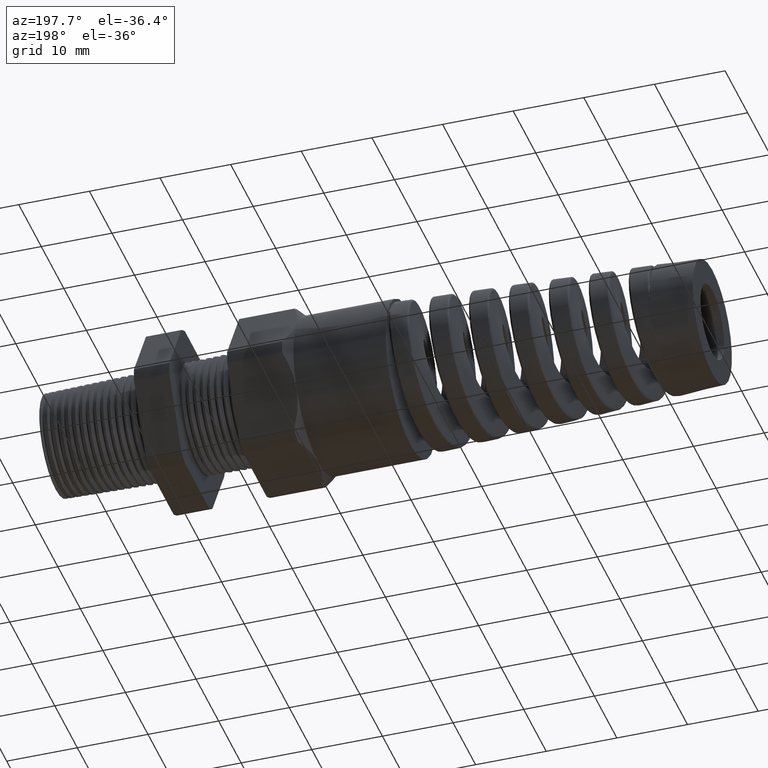
[diagram: clean part render]
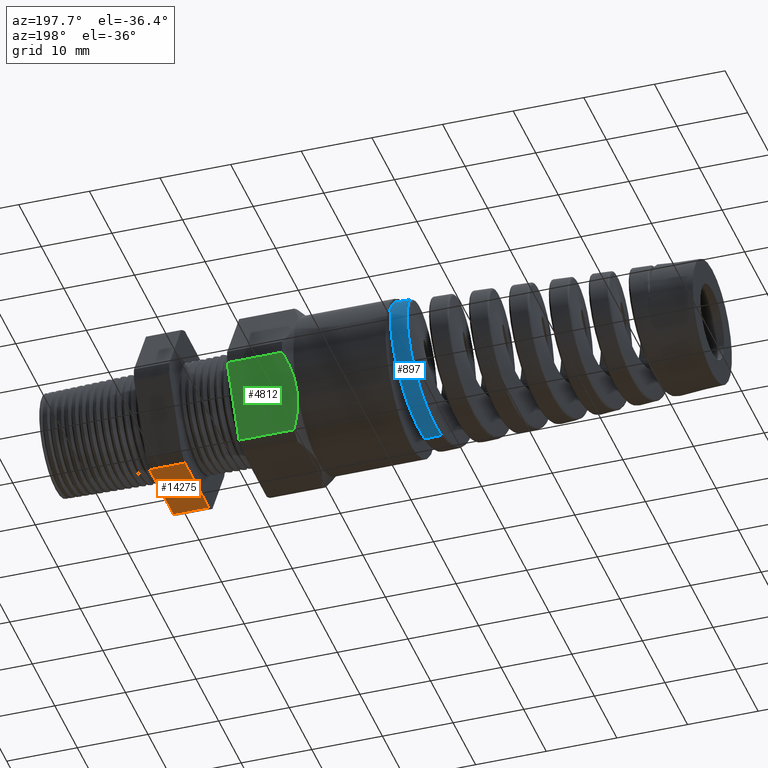
[diagram: same view with three faces highlighted in distinct colors, each labeled with its STEP entity id]
A machine part, auxiliary view with three faces highlighted in distinct colors.
Their STEP definitions:

[orange] entity #14275 — the highlighted planar face has unit normal (0, 0, -1).
#9445 = DIRECTION ( 'NONE',  ( -1.000000000000000000, 0.0000000000000000000, 0.0000000000000000000 ) ) ;
#9446 = VECTOR ( 'NONE', #9445, 39.37007874015748100 ) ;
#9447 = CARTESIAN_POINT ( 'NONE',  ( 0.2800000000000000300, 0.2095688967857588500, -0.4350000000000000000 ) ) ;
#9448 = LINE ( 'NONE', #9447, #9446 ) ;
#9454 = CARTESIAN_POINT ( 'NONE',  ( -0.5068503937007874400, -0.2095688967857587700, -0.4350000000000000500 ) ) ;
#9522 = DIRECTION ( 'NONE',  ( -1.000000000000000000, 0.0000000000000000000, 0.0000000000000000000 ) ) ;
#9523 = DIRECTION ( 'NONE',  ( 0.0000000000000000000, 0.0000000000000000000, -1.000000000000000000 ) ) ;
#9524 = CARTESIAN_POINT ( 'NONE',  ( 0.2800000000000000300, 0.2095688967857587700, -0.4350000000000000500 ) ) ;
#9525 = AXIS2_PLACEMENT_3D ( 'NONE', #9524, #9523, #9522 ) ;
#9530 = PLANE ( 'NONE',  #9525 ) ;
#9533 = FACE_OUTER_BOUND ( 'NONE', #14242, .T. ) ;
#9535 = DIRECTION ( 'NONE',  ( -1.000000000000000000, 0.0000000000000000000, 0.0000000000000000000 ) ) ;
#9536 = VECTOR ( 'NONE', #9535, 39.37007874015748100 ) ;
#9537 = CARTESIAN_POINT ( 'NONE',  ( 0.2800000000000000300, -0.2095688967857587700, -0.4350000000000000500 ) ) ;
#9539 = LINE ( 'NONE', #9537, #9536 ) ;
#9543 = DIRECTION ( 'NONE',  ( 0.0000000000000000000, -1.000000000000000000, 0.0000000000000000000 ) ) ;
#9545 = VECTOR ( 'NONE', #9543, 39.37007874015748100 ) ;
#9548 = CARTESIAN_POINT ( 'NONE',  ( -0.5068503937007874400, 0.8700000000000000000, -0.4350000000000000500 ) ) ;
#9549 = LINE ( 'NONE', #9548, #9545 ) ;
#9555 = CARTESIAN_POINT ( 'NONE',  ( -0.5068503937007874400, 0.2095688967857588500, -0.4350000000000000000 ) ) ;
#9646 = CARTESIAN_POINT ( 'NONE',  ( -0.3100000000000000000, -0.2095688967857587700, -0.4350000000000000500 ) ) ;
#9651 = CARTESIAN_POINT ( 'NONE',  ( -0.3100000000000000000, 0.2095688967857588500, -0.4350000000000000000 ) ) ;
#9835 = DIRECTION ( 'NONE',  ( 0.0000000000000000000, 1.000000000000000000, 0.0000000000000000000 ) ) ;
#9836 = VECTOR ( 'NONE', #9835, 39.37007874015748100 ) ;
#9838 = CARTESIAN_POINT ( 'NONE',  ( -0.3100000000000000000, 0.8700000000000000000, -0.4350000000000000500 ) ) ;
#9850 = LINE ( 'NONE', #9838, #9836 ) ;
#14242 = EDGE_LOOP ( 'NONE', ( #14273, #14274, #14272, #14253 ) ) ;
#14253 = ORIENTED_EDGE ( 'NONE', *, *, #14270, .F. ) ;
#14260 = VERTEX_POINT ( 'NONE', #9454 ) ;
#14265 = EDGE_CURVE ( 'NONE', #14326, #14269, #9448, .T. ) ;
#14269 = VERTEX_POINT ( 'NONE', #9555 ) ;
#14270 = EDGE_CURVE ( 'NONE', #14269, #14260, #9549, .T. ) ;
#14271 = EDGE_CURVE ( 'NONE', #14330, #14260, #9539, .T. ) ;
#14272 = ORIENTED_EDGE ( 'NONE', *, *, #14271, .T. ) ;
#14273 = ORIENTED_EDGE ( 'NONE', *, *, #14265, .F. ) ;
#14274 = ORIENTED_EDGE ( 'NONE', *, *, #14357, .F. ) ;
#14275 = ADVANCED_FACE ( 'NONE', ( #9533 ), #9530, .T. ) ;
#14326 = VERTEX_POINT ( 'NONE', #9651 ) ;
#14330 = VERTEX_POINT ( 'NONE', #9646 ) ;
#14357 = EDGE_CURVE ( 'NONE', #14330, #14326, #9850, .T. ) ;

[blue] entity #897 — the highlighted conical surface has half-angle 2.5 deg.
#816 = VERTEX_POINT ( 'NONE', #9504 ) ;
#817 = VERTEX_POINT ( 'NONE', #9496 ) ;
#818 = ORIENTED_EDGE ( 'NONE', *, *, #819, .T. ) ;
#819 = EDGE_CURVE ( 'NONE', #817, #820, #9491, .T. ) ;
#820 = VERTEX_POINT ( 'NONE', #9482 ) ;
#821 = ORIENTED_EDGE ( 'NONE', *, *, #822, .F. ) ;
#822 = EDGE_CURVE ( 'NONE', #823, #820, #9474, .T. ) ;
#823 = VERTEX_POINT ( 'NONE', #9469 ) ;
#879 = ORIENTED_EDGE ( 'NONE', *, *, #880, .F. ) ;
#880 = EDGE_CURVE ( 'NONE', #881, #823, #12725, .T. ) ;
#881 = VERTEX_POINT ( 'NONE', #12721 ) ;
#882 = ORIENTED_EDGE ( 'NONE', *, *, #883, .T. ) ;
#883 = EDGE_CURVE ( 'NONE', #881, #884, #12719, .T. ) ;
#884 = VERTEX_POINT ( 'NONE', #12720 ) ;
#885 = ORIENTED_EDGE ( 'NONE', *, *, #886, .F. ) ;
#886 = EDGE_CURVE ( 'NONE', #816, #884, #12718, .T. ) ;
#897 = ADVANCED_FACE ( 'NONE', ( #12735 ), #12734, .T. ) ;
#898 = EDGE_LOOP ( 'NONE', ( #899, #818, #821, #879, #882, #885 ) ) ;
#899 = ORIENTED_EDGE ( 'NONE', *, *, #900, .T. ) ;
#900 = EDGE_CURVE ( 'NONE', #816, #817, #12782, .T. ) ;
#9469 = CARTESIAN_POINT ( 'NONE',  ( -1.697947509874504700, 0.3794881232733283700, 0.1733064189351122800 ) ) ;
#9470 = DIRECTION ( 'NONE',  ( 0.0000000000000000000, -1.776356839400250500E-015, 1.000000000000000000 ) ) ;
#9471 = DIRECTION ( 'NONE',  ( 1.000000000000000000, 0.0000000000000000000, 0.0000000000000000000 ) ) ;
#9472 = CARTESIAN_POINT ( 'NONE',  ( -1.697947509874504500, 0.0000000000000000000, 0.0000000000000000000 ) ) ;
#9473 = AXIS2_PLACEMENT_3D ( 'NONE', #9472, #9471, #9470 ) ;
#9474 = CIRCLE ( 'NONE', #9473, 0.4171886270616993500 ) ;
#9482 = CARTESIAN_POINT ( 'NONE',  ( -1.697947509874504500, 5.109087167717889600E-017, 0.4171886270616993500 ) ) ;
#9486 = DIRECTION ( 'NONE',  ( 0.9990482215818576900, 5.341834311772761000E-018, 0.04361938736533630500 ) ) ;
#9488 = VECTOR ( 'NONE', #9486, 39.37007874015748100 ) ;
#9490 = CARTESIAN_POINT ( 'NONE',  ( -1.289999999999999600, 5.327213576290984500E-017, 0.4349999999999998900 ) ) ;
#9491 = LINE ( 'NONE', #9490, #9488 ) ;
#9496 = CARTESIAN_POINT ( 'NONE',  ( -1.759818526434775400, -4.413664036148914700E-016, 0.4144872801399697200 ) ) ;
#9504 = CARTESIAN_POINT ( 'NONE',  ( -1.869987152945541600, -3.123943079857578700E-014, -0.4096772140275739500 ) ) ;
#12695 = CARTESIAN_POINT ( 'NONE',  ( -1.749105219087355500, 0.3077843265509296300, -0.2788465494111039800 ) ) ;
#12696 = CARTESIAN_POINT ( 'NONE',  ( -1.746198598627165500, 0.3300109971703515900, -0.2523582137224551500 ) ) ;
#12697 = CARTESIAN_POINT ( 'NONE',  ( -1.744754043085099600, 0.3402296694279314200, -0.2385060421989063100 ) ) ;
#12698 = CARTESIAN_POINT ( 'NONE',  ( -1.741857825854413300, 0.3589035858062654100, -0.2096057816249846400 ) ) ;
#12699 = CARTESIAN_POINT ( 'NONE',  ( -1.740406224564121600, 0.3673589461787786800, -0.1945577652890330400 ) ) ;
#12700 = CARTESIAN_POINT ( 'NONE',  ( -1.737473779202460800, 0.3824496773234487600, -0.1632296954733170300 ) ) ;
#12701 = CARTESIAN_POINT ( 'NONE',  ( -1.736005218053345600, 0.3890092206198398900, -0.1470768213572722400 ) ) ;
#12702 = CARTESIAN_POINT ( 'NONE',  ( -1.733098478209519100, 0.3999739132701515300, -0.1143945794678229000 ) ) ;
#12703 = CARTESIAN_POINT ( 'NONE',  ( -1.731653513978001600, 0.4044213241097587800, -0.09777959250355787400 ) ) ;
#12704 = CARTESIAN_POINT ( 'NONE',  ( -1.728758839455180900, 0.4112492772151660800, -0.06400456391847109100 ) ) ;
#12705 = CARTESIAN_POINT ( 'NONE',  ( -1.727302473472208000, 0.4136348446785426700, -0.04677373323841174700 ) ) ;
#12706 = CARTESIAN_POINT ( 'NONE',  ( -1.722923125296478700, 0.4175182178197094900, 0.005299779680468981600 ) ) ;
#12709 = DIRECTION ( 'NONE',  ( 0.9990482215818576900, 0.0000000000000000000, -0.04361938736533630500 ) ) ;
#12710 = VECTOR ( 'NONE', #12709, 39.37007874015748100 ) ;
#12711 = CARTESIAN_POINT ( 'NONE',  ( -1.289999999999999600, 0.0000000000000000000, -0.4349999999999998900 ) ) ;
#12712 = CARTESIAN_POINT ( 'NONE',  ( -1.720059195504385100, 0.4157663971285094400, 0.03967146625719095200 ) ) ;
#12713 = CARTESIAN_POINT ( 'NONE',  ( -1.715702347076071500, 0.4067797165749028600, 0.09071301296083254800 ) ) ;
#12714 = CARTESIAN_POINT ( 'NONE',  ( -1.714232638663220300, 0.4026800839986720600, 0.1077256585311541600 ) ) ;
#12715 = CARTESIAN_POINT ( 'NONE',  ( -1.711306039998091700, 0.3924186553999360900, 0.1409613995903427600 ) ) ;
#12716 = CARTESIAN_POINT ( 'NONE',  ( -1.709846342252209700, 0.3862631574075534600, 0.1572205726125605300 ) ) ;
#12717 = CARTESIAN_POINT ( 'NONE',  ( -1.708382659566020300, 0.3790736872271837600, 0.1731171523345783300 ) ) ;
#12718 = LINE ( 'NONE', #12711, #12710 ) ;
#12719 = B_SPLINE_CURVE_WITH_KNOTS ( 'NONE', 3,
 ( #12717, #12716, #12715, #12714, #12713, #12712, #12706, #12705, #12704, #12703, #12702, #12701, #12700, #12699, #12698, #12697, #12696, #12695, #12764, #12763, #12762, #12761, #12760, #12759, #12758, #12757, #12756, #12755, #12754, #12753 ),
 .UNSPECIFIED., .F., .F.,
 ( 4, 2, 2, 2, 2, 2, 2, 2, 2, 2, 2, 2, 2, 2, 4 ),
 ( 0.0000000000000000000, 0.001329015504108315700, 0.002658031008216631300, 0.005316062016433261700, 0.006645077520541577800, 0.007974093024649894800, 0.009303108528758210000, 0.01063212403286652500, 0.01196113953697484200, 0.01329015504108315900, 0.01594818604929979000, 0.01727720155340811000, 0.01860621705751642700, 0.01993523256162474400, 0.02126424806573306100 ),
 .UNSPECIFIED. ) ;
#12720 = CARTESIAN_POINT ( 'NONE',  ( -1.778276626023046300, 1.049936777947114100E-012, -0.4136813821076466000 ) ) ;
#12721 = CARTESIAN_POINT ( 'NONE',  ( -1.708382659566020300, 0.3790736872271837600, 0.1731171523345783300 ) ) ;
#12722 = DIRECTION ( 'NONE',  ( 0.9990482215818576900, 0.03967759036527075000, 0.01812014836950940800 ) ) ;
#12723 = VECTOR ( 'NONE', #12722, 39.37007874015748100 ) ;
#12724 = CARTESIAN_POINT ( 'NONE',  ( -11.25313801356749700, -8.866020857870795700E-019, 1.941387766782773200E-018 ) ) ;
#12725 = LINE ( 'NONE', #12724, #12723 ) ;
#12734 = CONICAL_SURFACE ( 'NONE', #12787, 0.4349999999999998900, 0.04363323129985854200 ) ;
#12735 = FACE_OUTER_BOUND ( 'NONE', #898, .T. ) ;
#12753 = CARTESIAN_POINT ( 'NONE',  ( -1.778276626023046300, 1.049936777947114100E-012, -0.4136813821076466000 ) ) ;
#12754 = CARTESIAN_POINT ( 'NONE',  ( -1.776822342904421200, 0.01721106945705508700, -0.4137448774798180900 ) ) ;
#12755 = CARTESIAN_POINT ( 'NONE',  ( -1.775367572974109000, 0.03446490306440957300, -0.4127386796272036800 ) ) ;
#12756 = CARTESIAN_POINT ( 'NONE',  ( -1.772430032450400100, 0.06905899246847811700, -0.4085071184895989700 ) ) ;
#12757 = CARTESIAN_POINT ( 'NONE',  ( -1.770971416669324700, 0.08611160194830154400, -0.4053118216148420800 ) ) ;
#12758 = CARTESIAN_POINT ( 'NONE',  ( -1.768068041300423300, 0.1195088067156545000, -0.3968822277226902700 ) ) ;
#12759 = CARTESIAN_POINT ( 'NONE',  ( -1.766619997668136000, 0.1358928358664816300, -0.3916429410271444800 ) ) ;
#12760 = CARTESIAN_POINT ( 'NONE',  ( -1.763707434765078100, 0.1680274909740064600, -0.3791083958047598000 ) ) ;
#12761 = CARTESIAN_POINT ( 'NONE',  ( -1.762233248273574500, 0.1838780121430427800, -0.3717563020103948900 ) ) ;
#12762 = CARTESIAN_POINT ( 'NONE',  ( -1.757827622265492500, 0.2296584264894643600, -0.3468933411470998500 ) ) ;
#12763 = CARTESIAN_POINT ( 'NONE',  ( -1.754943681735108100, 0.2576032015492146800, -0.3268251046421922800 ) ) ;
#12764 = CARTESIAN_POINT ( 'NONE',  ( -1.750576158884134200, 0.2956919500469616400, -0.2915478049266984600 ) ) ;
#12765 = CARTESIAN_POINT ( 'NONE',  ( -1.836574599157338800, 0.3353700915211437800, -0.2382013937207167200 ) ) ;
#12766 = CARTESIAN_POINT ( 'NONE',  ( -1.837719927918936000, 0.3273753047961898100, -0.2489953573931748800 ) ) ;
#12767 = CARTESIAN_POINT ( 'NONE',  ( -1.840017415274145100, 0.3102897201031448700, -0.2698353301421495500 ) ) ;
#12768 = CARTESIAN_POINT ( 'NONE',  ( -1.841175209224826600, 0.3011555264941155900, -0.2799238433735226100 ) ) ;
#12769 = CARTESIAN_POINT ( 'NONE',  ( -1.844643698052410800, 0.2723509675360869500, -0.3087157347620752000 ) ) ;
#12770 = CARTESIAN_POINT ( 'NONE',  ( -1.846921604849405700, 0.2515484429200812700, -0.3257407682224600100 ) ) ;
#12771 = CARTESIAN_POINT ( 'NONE',  ( -1.850362170562167300, 0.2180216913266075900, -0.3481167602432190300 ) ) ;
#12772 = CARTESIAN_POINT ( 'NONE',  ( -1.851512826080381000, 0.2064561426543130300, -0.3550447075335407300 ) ) ;
#12773 = CARTESIAN_POINT ( 'NONE',  ( -1.853833237338517800, 0.1825235589414383200, -0.3678081980434257400 ) ) ;
#12774 = CARTESIAN_POINT ( 'NONE',  ( -1.854999448425058700, 0.1701899299555240900, -0.3736163376987128900 ) ) ;
#12775 = CARTESIAN_POINT ( 'NONE',  ( -1.858465252674846200, 0.1327937817702409500, -0.3890253553427059900 ) ) ;
#12776 = CARTESIAN_POINT ( 'NONE',  ( -1.860754780517113400, 0.1070899885657351800, -0.3967690349089999000 ) ) ;
#12777 = CARTESIAN_POINT ( 'NONE',  ( -1.864212878419543300, 0.06737618642902928900, -0.4045794345052226000 ) ) ;
#12778 = CARTESIAN_POINT ( 'NONE',  ( -1.865376961625062200, 0.05386736216256095300, -0.4065492076221711200 ) ) ;
#12779 = CARTESIAN_POINT ( 'NONE',  ( -1.867690451625402300, 0.02689189993856584300, -0.4091185450251746400 ) ) ;
#12780 = CARTESIAN_POINT ( 'NONE',  ( -1.868839432925033500, 0.01343207603015052900, -0.4097273245658653600 ) ) ;
#12781 = CARTESIAN_POINT ( 'NONE',  ( -1.869987152945541600, -3.123943079857578700E-014, -0.4096772140275739500 ) ) ;
#12782 = B_SPLINE_CURVE_WITH_KNOTS ( 'NONE', 3,
 ( #12781, #12780, #12779, #12778, #12777, #12776, #12775, #12774, #12773, #12772, #12771, #12770, #12769, #12768, #12767, #12766, #12765, #12845, #12844, #12843, #12842, #12841, #12840, #12839, #12838, #12837, #12836, #12835, #12834, #12833, #12832, #12831, #12830, #12829, #12828, #12827, #12826, #12825, #12824, #12823, #12822, #12821, #12820, #12819, #12818, #12817, #12816, #12815 ),
 .UNSPECIFIED., .F., .F.,
 ( 4, 2, 2, 2, 2, 2, 2, 2, 2, 2, 2, 2, 2, 2, 2, 2, 2, 2, 2, 2, 2, 2, 2, 4 ),
 ( 0.3560480053400000800, 0.3570866350650043800, 0.3581252647900086100, 0.3602025242400172000, 0.3612411539650214300, 0.3622797836900257300, 0.3643570431400343100, 0.3653956728650386000, 0.3664343025900428400, 0.3674729323150471300, 0.3685115620400514200, 0.3705888214900599500, 0.3726660809400685300, 0.3747433403900770600, 0.3757819701150813500, 0.3768205998400856500, 0.3788978592900942300, 0.3809751187401028100, 0.3820137484651070500, 0.3830523781901113400, 0.3851296376401199300, 0.3861682673651241600, 0.3872068970901284500, 0.3892841565401370400 ),
 .UNSPECIFIED. ) ;
#12784 = DIRECTION ( 'NONE',  ( 0.0000000000000000000, 0.0000000000000000000, -1.000000000000000000 ) ) ;
#12785 = DIRECTION ( 'NONE',  ( 1.000000000000000000, 0.0000000000000000000, 0.0000000000000000000 ) ) ;
#12786 = CARTESIAN_POINT ( 'NONE',  ( -1.289999999999999600, 0.0000000000000000000, 0.0000000000000000000 ) ) ;
#12787 = AXIS2_PLACEMENT_3D ( 'NONE', #12786, #12785, #12784 ) ;
#12815 = CARTESIAN_POINT ( 'NONE',  ( -1.759818526434775400, -4.413664036148914700E-016, 0.4144872801399697200 ) ) ;
#12816 = CARTESIAN_POINT ( 'NONE',  ( -1.762114852244692600, 0.02709255505655012000, 0.4143870203898841200 ) ) ;
#12817 = CARTESIAN_POINT ( 'NONE',  ( -1.764386336985494400, 0.05381673444277348900, 0.4116566522546143400 ) ) ;
#12818 = CARTESIAN_POINT ( 'NONE',  ( -1.767804209272199700, 0.09335851967198916000, 0.4037025351181351400 ) ) ;
#12819 = CARTESIAN_POINT ( 'NONE',  ( -1.768944762968068100, 0.1064477767329766600, 0.4004035633135491500 ) ) ;
#12820 = CARTESIAN_POINT ( 'NONE',  ( -1.771242565967483500, 0.1324365111693308100, 0.3924686445601590100 ) ) ;
#12821 = CARTESIAN_POINT ( 'NONE',  ( -1.772389467515735900, 0.1452189024075994600, 0.3878632414478079800 ) ) ;
#12822 = CARTESIAN_POINT ( 'NONE',  ( -1.775805216737160100, 0.1825222522689072300, 0.3723342986995234500 ) ) ;
#12823 = CARTESIAN_POINT ( 'NONE',  ( -1.778065396128090300, 0.2061895441117343500, 0.3596599604627425100 ) ) ;
#12824 = CARTESIAN_POINT ( 'NONE',  ( -1.781501381116243700, 0.2398668407961102600, 0.3371380872896227500 ) ) ;
#12825 = CARTESIAN_POINT ( 'NONE',  ( -1.782660374738460000, 0.2508399215683423900, 0.3289930512329555800 ) ) ;
#12826 = CARTESIAN_POINT ( 'NONE',  ( -1.784960663624737700, 0.2717508325124014000, 0.3118100916086825600 ) ) ;
#12827 = CARTESIAN_POINT ( 'NONE',  ( -1.786104655516522300, 0.2817197048742711700, 0.3027605385936112400 ) ) ;
#12828 = CARTESIAN_POINT ( 'NONE',  ( -1.789531388553288200, 0.3101989291423670700, 0.2742696207876061900 ) ) ;
#12829 = CARTESIAN_POINT ( 'NONE',  ( -1.791804842473727600, 0.3272960411029517400, 0.2534988260871783900 ) ) ;
#12830 = CARTESIAN_POINT ( 'NONE',  ( -1.796417506856193600, 0.3575528933335299100, 0.2082640991321848800 ) ) ;
#12831 = CARTESIAN_POINT ( 'NONE',  ( -1.798689471854974000, 0.3702462593188491900, 0.1844840420711519600 ) ) ;
#12832 = CARTESIAN_POINT ( 'NONE',  ( -1.802107602664885000, 0.3856930120018775600, 0.1472876479982669600 ) ) ;
#12833 = CARTESIAN_POINT ( 'NONE',  ( -1.803249317170855900, 0.3902439334046629600, 0.1346247090286903600 ) ) ;
#12834 = CARTESIAN_POINT ( 'NONE',  ( -1.805548990000180000, 0.3981237645619473700, 0.1087601253865206300 ) ) ;
#12835 = CARTESIAN_POINT ( 'NONE',  ( -1.806711716707019500, 0.4014581404030877500, 0.09550244170180899300 ) ) ;
#12836 = CARTESIAN_POINT ( 'NONE',  ( -1.810167615464115300, 0.4093976183237753000, 0.05573693659159324000 ) ) ;
#12837 = CARTESIAN_POINT ( 'NONE',  ( -1.812449015748325700, 0.4120471503902004600, 0.02901798415312037800 ) ) ;
#12838 = CARTESIAN_POINT ( 'NONE',  ( -1.817029799822942500, 0.4121209588199185600, -0.02482692053036748100 ) ) ;
#12839 = CARTESIAN_POINT ( 'NONE',  ( -1.819349106600529400, 0.4094583509440427000, -0.05214674160645232200 ) ) ;
#12840 = CARTESIAN_POINT ( 'NONE',  ( -1.823920865184595100, 0.3990020527966161000, -0.1049208929733251200 ) ) ;
#12841 = CARTESIAN_POINT ( 'NONE',  ( -1.826194987246362800, 0.3912454807942473100, -0.1306359172121986400 ) ) ;
#12842 = CARTESIAN_POINT ( 'NONE',  ( -1.829659307754784500, 0.3757419569695424300, -0.1681738741978594000 ) ) ;
#12843 = CARTESIAN_POINT ( 'NONE',  ( -1.830824657177118500, 0.3699073547365695500, -0.1805273461960573400 ) ) ;
#12844 = CARTESIAN_POINT ( 'NONE',  ( -1.833131980831749200, 0.3571873091934370000, -0.2043426629538824000 ) ) ;
#12845 = CARTESIAN_POINT ( 'NONE',  ( -1.834280327717205900, 0.3502760821046648800, -0.2158750695085457900 ) ) ;

[green] entity #4812 — the highlighted planar face has unit normal (0, 0.866, -0.5).
#4477 = VERTEX_POINT ( 'NONE', #8537 ) ;
#4812 = ADVANCED_FACE ( 'NONE', ( #9054 ), #9052, .T. ) ;
#4815 = EDGE_LOOP ( 'NONE', ( #4955, #4954, #4946, #4947, #4949 ) ) ;
#4910 = VERTEX_POINT ( 'NONE', #9111 ) ;
#4912 = EDGE_CURVE ( 'NONE', #4910, #4918, #9110, .T. ) ;
#4918 = VERTEX_POINT ( 'NONE', #9105 ) ;
#4946 = ORIENTED_EDGE ( 'NONE', *, *, #4950, .T. ) ;
#4947 = ORIENTED_EDGE ( 'NONE', *, *, #14432, .F. ) ;
#4948 = EDGE_CURVE ( 'NONE', #4910, #14429, #9125, .T. ) ;
#4949 = ORIENTED_EDGE ( 'NONE', *, *, #4948, .F. ) ;
#4950 = EDGE_CURVE ( 'NONE', #4477, #14430, #9121, .T. ) ;
#4953 = EDGE_CURVE ( 'NONE', #4918, #4477, #9160, .T. ) ;
#4954 = ORIENTED_EDGE ( 'NONE', *, *, #4953, .T. ) ;
#4955 = ORIENTED_EDGE ( 'NONE', *, *, #4912, .T. ) ;
#8537 = CARTESIAN_POINT ( 'NONE',  ( -1.183700787401574600, 0.3767210506462309600, -0.2175000000000000300 ) ) ;
#9048 = DIRECTION ( 'NONE',  ( 0.0000000000000000000, 0.4999999999999998300, 0.8660254037844386000 ) ) ;
#9049 = DIRECTION ( 'NONE',  ( 0.0000000000000000000, 0.8660254037844387100, -0.4999999999999998900 ) ) ;
#9050 = CARTESIAN_POINT ( 'NONE',  ( 0.2800000000000000300, 0.4815054990391102700, -0.03600801154045400000 ) ) ;
#9051 = AXIS2_PLACEMENT_3D ( 'NONE', #9050, #9049, #9048 ) ;
#9052 = PLANE ( 'NONE',  #9051 ) ;
#9054 = FACE_OUTER_BOUND ( 'NONE', #4815, .T. ) ;
#9105 = CARTESIAN_POINT ( 'NONE',  ( -1.135850787401574600, 0.2719366022533516400, -0.3989919884595459800 ) ) ;
#9107 = DIRECTION ( 'NONE',  ( -1.000000000000000000, 0.0000000000000000000, 0.0000000000000000000 ) ) ;
#9108 = VECTOR ( 'NONE', #9107, 39.37007874015748100 ) ;
#9109 = CARTESIAN_POINT ( 'NONE',  ( 0.2800000000000000300, 0.2719366022533517000, -0.3989919884595459800 ) ) ;
#9110 = LINE ( 'NONE', #9109, #9108 ) ;
#9111 = CARTESIAN_POINT ( 'NONE',  ( -0.8293700787401573300, 0.2719366022533517000, -0.3989919884595459800 ) ) ;
#9116 = CARTESIAN_POINT ( 'NONE',  ( -1.183700787401574600, 0.3767210506462309600, -0.2175000000000000300 ) ) ;
#9121 = B_SPLINE_CURVE_WITH_KNOTS ( 'NONE', 3,
 ( #9116, #9174, #9173, #9172, #9171, #9170 ),
 .UNSPECIFIED., .F., .F.,
 ( 4, 2, 4 ),
 ( 0.005463532759325820200, 0.008193301819514674900, 0.01092307087970353100 ),
 .UNSPECIFIED. ) ;
#9122 = DIRECTION ( 'NONE',  ( 0.0000000000000000000, 0.4999999999999998300, 0.8660254037844386000 ) ) ;
#9123 = VECTOR ( 'NONE', #9122, 39.37007874015748900 ) ;
#9124 = CARTESIAN_POINT ( 'NONE',  ( -0.8293700787401573300, 0.4554710506462308900, -0.08110099890395097700 ) ) ;
#9125 = LINE ( 'NONE', #9124, #9123 ) ;
#9151 = CARTESIAN_POINT ( 'NONE',  ( -1.183700787401574600, 0.3767210506462309600, -0.2175000000000000300 ) ) ;
#9152 = CARTESIAN_POINT ( 'NONE',  ( -1.183700787401574400, 0.3676495597967359700, -0.2332122830517214300 ) ) ;
#9153 = CARTESIAN_POINT ( 'NONE',  ( -1.182536090834003700, 0.3584812283341805000, -0.2490922989655000300 ) ) ;
#9154 = CARTESIAN_POINT ( 'NONE',  ( -1.178089260520927400, 0.3405629272155457100, -0.2801277068882933600 ) ) ;
#9155 = CARTESIAN_POINT ( 'NONE',  ( -1.174815962699240000, 0.3317346034573625000, -0.2954188121831342600 ) ) ;
#9156 = CARTESIAN_POINT ( 'NONE',  ( -1.162280890324094700, 0.3055879730118447000, -0.3407061045614985800 ) ) ;
#9157 = CARTESIAN_POINT ( 'NONE',  ( -1.150320593554597900, 0.2886059315482656400, -0.3701198631926586600 ) ) ;
#9158 = CARTESIAN_POINT ( 'NONE',  ( -1.135850787401574600, 0.2719366022533516400, -0.3989919884595459800 ) ) ;
#9160 = B_SPLINE_CURVE_WITH_KNOTS ( 'NONE', 3,
 ( #9158, #9157, #9156, #9155, #9154, #9153, #9152, #9151 ),
 .UNSPECIFIED., .F., .F.,
 ( 4, 2, 2, 4 ),
 ( 2.483252225667815900E-007, 0.002731890542274194600, 0.004097711650800007200, 0.005463532759325820200 ),
 .UNSPECIFIED. ) ;
#9170 = CARTESIAN_POINT ( 'NONE',  ( -1.135850787401574600, 0.4815054990391102700, -0.03600801154045400000 ) ) ;
#9171 = CARTESIAN_POINT ( 'NONE',  ( -1.150338517520593600, 0.4648155211958817600, -0.06491590114212471300 ) ) ;
#9172 = CARTESIAN_POINT ( 'NONE',  ( -1.162467496876746100, 0.4475652507652402300, -0.09479424597229903200 ) ) ;
#9173 = CARTESIAN_POINT ( 'NONE',  ( -1.179123414147936300, 0.4126204045939864100, -0.1553204950035892200 ) ) ;
#9174 = CARTESIAN_POINT ( 'NONE',  ( -1.183700787401574100, 0.3948515912391094000, -0.1860969825244445100 ) ) ;
#10123 = CARTESIAN_POINT ( 'NONE',  ( -1.135850787401574600, 0.4815054990391102700, -0.03600801154045400000 ) ) ;
#10125 = CARTESIAN_POINT ( 'NONE',  ( -0.8293700787401573300, 0.4815054990391102700, -0.03600801154045400000 ) ) ;
#10257 = DIRECTION ( 'NONE',  ( -1.000000000000000000, 0.0000000000000000000, 0.0000000000000000000 ) ) ;
#10258 = VECTOR ( 'NONE', #10257, 39.37007874015748100 ) ;
#10259 = CARTESIAN_POINT ( 'NONE',  ( 0.2800000000000000300, 0.4815054990391102700, -0.03600801154045400000 ) ) ;
#10260 = LINE ( 'NONE', #10259, #10258 ) ;
#14429 = VERTEX_POINT ( 'NONE', #10125 ) ;
#14430 = VERTEX_POINT ( 'NONE', #10123 ) ;
#14432 = EDGE_CURVE ( 'NONE', #14429, #14430, #10260, .T. ) ;